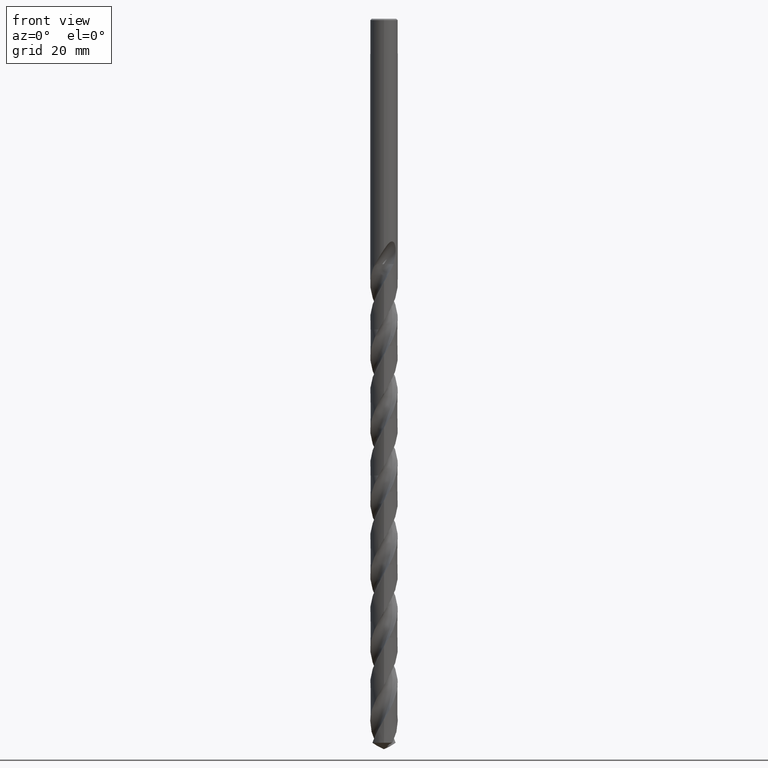
[diagram: clean part render]
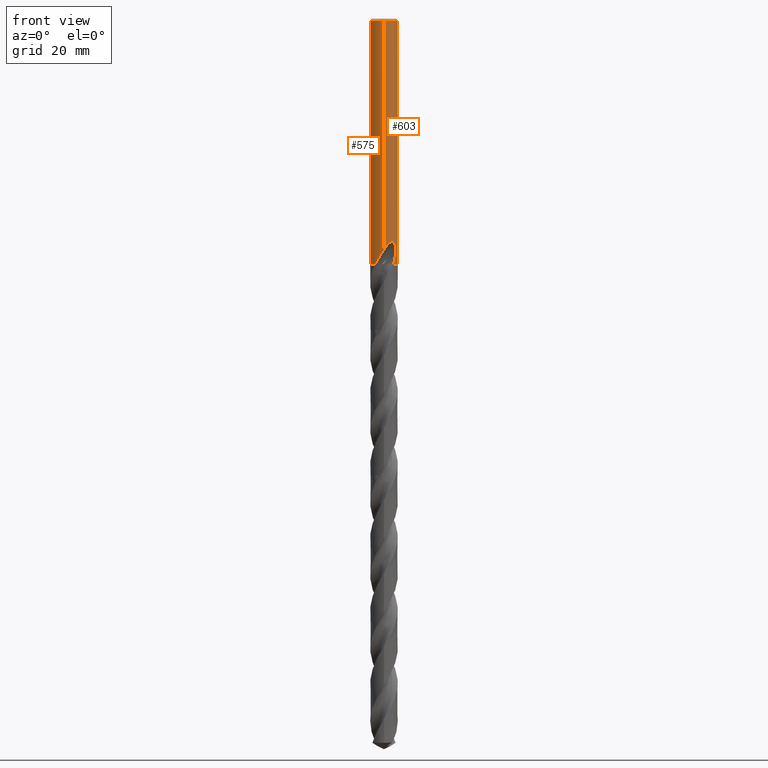
[diagram: same view with one multi-face feature highlighted, each face labeled with its STEP entity id]
A machine part, front view. The highlighted faces form ONE feature: a constant-radius fillet chain: 2 tangent blend faces with common blend radius 5 mm. The faces share edges in the B-rep.
Their STEP definitions:
[1] entity #603 (Cylinder):
#321=VERTEX_POINT('',#894);
#329=VERTEX_POINT('',#904);
#353=EDGE_CURVE('',#379,#321,#931,.T.);
#355=EDGE_CURVE('',#441,#745,#933,.T.);
#379=VERTEX_POINT('',#959);
#397=EDGE_CURVE('',#637,#481,#977,.T.);
#421=EDGE_CURVE('',#537,#683,#1004,.T.);
#441=VERTEX_POINT('',#1024);
#473=EDGE_CURVE('',#683,#681,#1061,.T.);
#481=VERTEX_POINT('',#1070);
#517=EDGE_CURVE('',#379,#329,#1111,.T.);
#525=EDGE_CURVE('',#755,#537,#1120,.T.);
#531=EDGE_CURVE('',#829,#751,#1126,.T.);
#537=VERTEX_POINT('',#1132);
#563=EDGE_CURVE('',#755,#599,#1161,.T.);
#599=VERTEX_POINT('',#1202);
#603=ADVANCED_FACE('',(#1206),#1207,.T.);
#631=EDGE_CURVE('',#321,#745,#1237,.T.);
#637=VERTEX_POINT('',#1244);
#681=VERTEX_POINT('',#1290);
#683=VERTEX_POINT('',#1292);
#721=EDGE_CURVE('',#681,#637,#1334,.T.);
#741=EDGE_CURVE('',#441,#599,#1355,.T.);
#745=VERTEX_POINT('',#1359);
#749=EDGE_CURVE('',#771,#329,#1363,.T.);
#751=VERTEX_POINT('',#1365);
#755=VERTEX_POINT('',#1369);
#771=VERTEX_POINT('',#1386);
#829=VERTEX_POINT('',#1449);
#833=EDGE_CURVE('',#771,#751,#1453,.T.);
#857=EDGE_CURVE('',#481,#829,#1478,.T.);
#894=CARTESIAN_POINT('',(4.06821081647643,-2.90683001785523,-86.2670988560816));
#904=CARTESIAN_POINT('',(6.12303176911189E-016,-5.0,-0.5));
#931=B_SPLINE_CURVE_WITH_KNOTS('',3,(#5216,#5217,#5218,#5219,#5220,#5221,#5222,#5223,#5224,#5225,#5226,#5227,#5228,#5229,#5230,#5231,#5232,#5233,#5234,#5235,#5236,#5237,#5238,#5239,#5240,#5241,#5242,#5243,#5244,#5245),.UNSPECIFIED.,.F.,.F.,(4,2,2,2,2,2,2,2,2,2,2,2,2,2,4),(0.0,2.44607777701198,3.78334796298583,4.99512229908905,6.40323188173331,8.09442266019314,9.55795720809553,10.222023430528,10.7074197722928,11.1667761714211,11.7495414487186,12.6021883385901,13.8142995960593,14.607185367353,15.4404435408894),.UNSPECIFIED.);
#933=CIRCLE('',#5248,5.0);
#959=CARTESIAN_POINT('',(1.55017749396517E-012,-5.0,-83.6901144457998));
#977=LINE('',#6253,#6254);
#1004=ELLIPSE('',#8523,15.2399728668489,5.0);
#1024=CARTESIAN_POINT('',(3.18369989250538,3.85539297536078,-89.0));
#1061=LINE('',#9774,#9775);
#1070=CARTESIAN_POINT('',(1.33721006514658,4.81786978255647,-70.5150484364821));
#1111=LINE('',#10986,#10987);
#1120=B_SPLINE_CURVE_WITH_KNOTS('',3,(#10997,#10998,#10999,#11000,#11001,#11002,#11003,#11004,#11005,#11006,#11007,#11008,#11009,#11010,#11011,#11012),.UNSPECIFIED.,.F.,.F.,(4,2,2,2,2,2,2,4),(5.87517564836088,6.18447732711525,6.49384941721168,6.8032215073081,7.11259359740452,7.42196568750095,7.73087791711932,8.03979014673769),.UNSPECIFIED.);
#1126=B_SPLINE_CURVE_WITH_KNOTS('',3,(#11319,#11320,#11321,#11322,#11323,#11324,#11325,#11326,#11327,#11328,#11329,#11330,#11331,#11332,#11333,#11334,#11335,#11336,#11337,#11338,#11339,#11340,#11341,#11342,#11343,#11344,#11345),.UNSPECIFIED.,.F.,.F.,(4,2,3,2,2,2,2,2,2,2,2,2,4),(-0.542486104801739,-0.27124305240087,0.0,0.271243052400869,0.542486104801738,0.814298814936945,1.08611152507215,1.35696845964794,1.62782539422372,1.89896433698446,2.1701032797452,2.44124222250594,2.71238116526669),.UNSPECIFIED.);
#1132=CARTESIAN_POINT('',(0.29010312703583,4.99157692274536,-72.9998328990228));
#1161=LINE('',#12200,#12201);
#1202=CARTESIAN_POINT('',(-1.54285002200265E-012,5.0,-83.6901144457998));
#1206=FACE_OUTER_BOUND('',#12563,.T.);
#1207=CYLINDRICAL_SURFACE('',#12564,5.0);
#1237=B_SPLINE_CURVE_WITH_KNOTS('',3,(#13275,#13276,#13277,#13278),.UNSPECIFIED.,.F.,.F.,(4,4),(0.0,2.86833819870931),.UNSPECIFIED.);
#1244=CARTESIAN_POINT('',(1.33721006514658,4.81786978255646,-72.2901657003257));
#1290=CARTESIAN_POINT('',(0.873560781758956,4.92309776061503,-72.7587351791531));
#1292=CARTESIAN_POINT('',(0.873560781758957,4.92309776061503,-71.3198931596091));
#1334=B_SPLINE_CURVE_WITH_KNOTS('',3,(#15283,#15284,#15285,#15286,#15287,#15288,#15289,#15290,#15291,#15292),.UNSPECIFIED.,.F.,.F.,(4,2,2,2,4),(8.03978938391208,8.34870158568318,8.65761378745427,8.96684541549287,9.27607704353146),.UNSPECIFIED.);
#1355=B_SPLINE_CURVE_WITH_KNOTS('',3,(#15328,#15329,#15330,#15331,#15332,#15333,#15334,#15335,#15336,#15337,#15338,#15339,#15340,#15341,#15342,#15343,#15344,#15345,#15346,#15347,#15348,#15349,#15350,#15351,#15352,#15353,#15354,#15355,#15356,#15357),.UNSPECIFIED.,.F.,.F.,(4,2,2,2,2,2,2,2,2,2,2,2,2,2,4),(0.0,2.44607777701194,3.78334796298605,4.99512229908972,6.40323188173385,8.09442266019352,9.55795720809567,10.2220234305282,10.7074197722929,11.1667761714212,11.749541448719,12.6021883385911,13.8142995960615,14.6071853673558,15.4404435408929),.UNSPECIFIED.);
#1359=CARTESIAN_POINT('',(3.47670664779819,-3.59339823637123,-89.0));
#1363=CIRCLE('',#15367,5.0);
#1365=CARTESIAN_POINT('',(2.14056334127452E-015,5.0,-71.0232688117743));
#1369=CARTESIAN_POINT('',(9.42147903807027E-016,5.0,-73.0310253601034));
#1386=CARTESIAN_POINT('',(0.0,5.0,-0.5));
#1449=CARTESIAN_POINT('',(0.799431726384364,4.93567714856332,-70.000000276873));
#1453=LINE('',#17325,#17326);
#1478=B_SPLINE_CURVE_WITH_KNOTS('',3,(#18268,#18269,#18270,#18271,#18272,#18273,#18274,#18275,#18276,#18277),.UNSPECIFIED.,.F.,.F.,(4,2,2,2,4),(0.618463277568795,0.927694916353193,1.23692655513759,1.54583876733633,1.85475097953507),.UNSPECIFIED.);
#5216=CARTESIAN_POINT('',(-3.18369989250538,-3.85539297536078,-89.0));
#5217=CARTESIAN_POINT('',(-2.85406590813475,-4.12759756963011,-88.3056968843148));
#5218=CARTESIAN_POINT('',(-2.47525887047331,-4.36946715824586,-87.6581994401735));
#5219=CARTESIAN_POINT('',(-1.81473449441654,-4.66607311629714,-86.5762930464768));
#5220=CARTESIAN_POINT('',(-1.57686620428782,-4.75145827683551,-86.1953275186988));
#5221=CARTESIAN_POINT('',(-1.1163030630957,-4.87908651149652,-85.4577423223255));
#5222=CARTESIAN_POINT('',(-0.895653361450834,-4.92417738777206,-85.1045428379995));
#5223=CARTESIAN_POINT('',(-0.417985525806648,-4.98923060543745,-84.3432331588951));
#5224=CARTESIAN_POINT('',(-0.156964368126677,-5.00447218195467,-83.9291458543625));
#5225=CARTESIAN_POINT('',(0.422657682657537,-4.99213779766469,-83.0434100520718));
#5226=CARTESIAN_POINT('',(0.766342411190756,-4.95433705855272,-82.539418026656));
#5227=CARTESIAN_POINT('',(1.42864581789103,-4.80191385787404,-81.709166705754));
#5228=CARTESIAN_POINT('',(1.79468140245996,-4.6859809428233,-81.3045070518848));
#5229=CARTESIAN_POINT('',(2.34890255312178,-4.41809586196181,-80.9252770367008));
#5230=CARTESIAN_POINT('',(2.53250918029102,-4.31687864249262,-80.8314818217658));
#5231=CARTESIAN_POINT('',(2.85423880386233,-4.10846980481675,-80.7594487715074));
#5232=CARTESIAN_POINT('',(2.98620216087985,-4.0135562161977,-80.7581215463936));
#5233=CARTESIAN_POINT('',(3.23199428234378,-3.81805331987809,-80.8212384599523));
#5234=CARTESIAN_POINT('',(3.3394927989642,-3.72362807381564,-80.8804027809088));
#5235=CARTESIAN_POINT('',(3.55825626598477,-3.51669853819297,-81.0655090520644));
#5236=CARTESIAN_POINT('',(3.65946665641644,-3.40946119129411,-81.2021752140796));
#5237=CARTESIAN_POINT('',(3.86677853414884,-3.17530083334242,-81.5764062278713));
#5238=CARTESIAN_POINT('',(3.96586698818067,-3.04778560674963,-81.8539763364272));
#5239=CARTESIAN_POINT('',(4.15218500147194,-2.79175811013554,-82.6305648106482));
#5240=CARTESIAN_POINT('',(4.21953359046538,-2.68271831952406,-83.1836341781055));
#5241=CARTESIAN_POINT('',(4.25282338551273,-2.62946952381054,-84.2070683204208));
#5242=CARTESIAN_POINT('',(4.24497100799916,-2.64248934565095,-84.6145479284141));
#5243=CARTESIAN_POINT('',(4.18958938193937,-2.72949330322691,-85.4415232720679));
#5244=CARTESIAN_POINT('',(4.14015341260432,-2.80614382501452,-85.8579066419005));
#5245=CARTESIAN_POINT('',(4.06821081647643,-2.90683001785523,-86.2670988560816));
#5248=AXIS2_PLACEMENT_3D('',#18360,#18361,#18362);
#6253=CARTESIAN_POINT('',(1.33721006514658,4.81786978255646,-71.4026070684039));
#6254=VECTOR('',#18392,1.0);
#8523=AXIS2_PLACEMENT_3D('',#18427,#18428,#18429);
#9774=CARTESIAN_POINT('',(0.873560781758957,4.92309776061503,-72.0393141693811));
#9775=VECTOR('',#18482,1.0);
#10986=CARTESIAN_POINT('',(6.12303176911189E-016,-5.0,-82.0));
#10987=VECTOR('',#18535,1.0);
#10997=CARTESIAN_POINT('',(-1.3791962593314,4.80601890115366,-72.3124404256203));
#10998=CARTESIAN_POINT('',(-1.31957521374487,4.82312851403775,-72.4009601597598));
#10999=CARTESIAN_POINT('',(-1.25205684175205,4.84126211135571,-72.4821654513649));
#11000=CARTESIAN_POINT('',(-1.10836495207318,4.87616599259845,-72.6259115514073));
#11001=CARTESIAN_POINT('',(-1.0271524301646,4.89418890879516,-72.693486795378));
#11002=CARTESIAN_POINT('',(-0.850055905397224,4.92803532326639,-72.8128453591325));
#11003=CARTESIAN_POINT('',(-0.754172188044363,4.94382885968066,-72.8646375967458));
#11004=CARTESIAN_POINT('',(-0.553725999780853,4.97027232652294,-72.9480281920328));
#11005=CARTESIAN_POINT('',(-0.448990720596506,4.98092390938096,-72.9796924022892));
#11006=CARTESIAN_POINT('',(-0.237871423561602,4.99545922254228,-73.0213202804398));
#11007=CARTESIAN_POINT('',(-0.13148454027928,4.99933459384723,-73.0312723335086));
#11008=CARTESIAN_POINT('',(0.0746069172274584,5.00050365281921,-73.0312723335086));
#11009=CARTESIAN_POINT('',(0.180879006433095,4.99784409598263,-73.021349312763));
#11010=CARTESIAN_POINT('',(0.391840688075157,4.98574204084828,-72.9798000876985));
#11011=CARTESIAN_POINT('',(0.496532945230272,4.97630796240248,-72.9481849619546));
#11012=CARTESIAN_POINT('',(0.596736821506947,4.96426280185264,-72.9065357940623));
#11319=CARTESIAN_POINT('',(0.665122770091171,4.95556371169883,-69.8135963457478));
#11320=CARTESIAN_POINT('',(0.728735196954595,4.94702581852882,-69.8772777273236));
#11321=CARTESIAN_POINT('',(0.783964166103467,4.93829748078097,-69.9579436035979));
#11322=CARTESIAN_POINT('',(0.857301933462899,4.92609533329604,-70.1349114173306));
#11323=CARTESIAN_POINT('',(0.875400981188567,4.92277087849253,-70.2312276617865));
#11324=CARTESIAN_POINT('',(0.875400981188567,4.92277087849253,-70.3216420125868));
#11325=CARTESIAN_POINT('',(0.875400981188567,4.92277087849253,-70.4120563633871));
#11326=CARTESIAN_POINT('',(0.857301933462899,4.92609533329604,-70.5083726078429));
#11327=CARTESIAN_POINT('',(0.783964166103467,4.93829748078097,-70.6853404215757));
#11328=CARTESIAN_POINT('',(0.728735196954595,4.94702581852882,-70.76600629785));
#11329=CARTESIAN_POINT('',(0.601376746032752,4.96411953593411,-70.8935028030135));
#11330=CARTESIAN_POINT('',(0.520641197115554,4.97361399538109,-70.9488552844728));
#11331=CARTESIAN_POINT('',(0.343503822480858,4.98897870858442,-71.0223670116056));
#11332=CARTESIAN_POINT('',(0.247086219827462,4.9947129574863,-71.0405166027747));
#11333=CARTESIAN_POINT('',(0.066284997875468,5.00037576555244,-71.0405166027747));
#11334=CARTESIAN_POINT('',(-0.0299853354073712,5.00069421157822,-71.022481035651));
#11335=CARTESIAN_POINT('',(-0.207042529230848,4.99649628332508,-70.9491606175219));
#11336=CARTESIAN_POINT('',(-0.287834149954028,4.99211780487336,-70.8938794313977));
#11337=CARTESIAN_POINT('',(-0.415469449620834,4.98311973872716,-70.7663325263823));
#11338=CARTESIAN_POINT('',(-0.470822894462517,4.97792007270922,-70.6855206130663));
#11339=CARTESIAN_POINT('',(-0.544264412763404,4.97042641093864,-70.5083690868499));
#11340=CARTESIAN_POINT('',(-0.562348199187247,4.96827580785033,-70.4120216601737));
#11341=CARTESIAN_POINT('',(-0.562348199187247,4.96827580785033,-70.2312623649999));
#11342=CARTESIAN_POINT('',(-0.544264412763404,4.97042641093864,-70.1349149383237));
#11343=CARTESIAN_POINT('',(-0.470822894462518,4.97792007270922,-69.9577634121072));
#11344=CARTESIAN_POINT('',(-0.415469449620837,4.98311973872716,-69.8769514987912));
#11345=CARTESIAN_POINT('',(-0.351618594554049,4.98762111271133,-69.8131448640466));
#12200=CARTESIAN_POINT('',(-6.12303176911189E-016,5.0,-82.0));
#12201=VECTOR('',#18582,1.0);
#12563=EDGE_LOOP('',(#18658,#18659,#18660,#18661,#18662,#18663,#18664,#18665,#18666,#18667,#18668,#18669,#18670,#18671,#18672));
#12564=AXIS2_PLACEMENT_3D('',#18673,#18674,#18675);
#13275=CARTESIAN_POINT('',(4.06821081652905,-2.90683001778158,-86.2670988561105));
#13276=CARTESIAN_POINT('',(3.90731007304645,-3.13201626569403,-87.1822784354923));
#13277=CARTESIAN_POINT('',(3.71344614018777,-3.36434659420802,-88.1028700889231));
#13278=CARTESIAN_POINT('',(3.47670664779819,-3.59339823637123,-89.0));
#15283=CARTESIAN_POINT('',(0.596736548110756,4.96426283471664,-72.9065353597382));
#15284=CARTESIAN_POINT('',(0.696940415976902,4.95221768077605,-72.8648861955132));
#15285=CARTESIAN_POINT('',(0.79282967838602,4.93756175251447,-72.8131364650754));
#15286=CARTESIAN_POINT('',(0.969955792779437,4.90584148938556,-72.6938507691423));
#15287=CARTESIAN_POINT('',(1.05119214028325,4.88880718483703,-72.6263060709848));
#15288=CARTESIAN_POINT('',(1.1950179267128,4.85565484960812,-72.4825325659411));
#15289=CARTESIAN_POINT('',(1.26262396516471,4.83834796167932,-72.4012621113954));
#15290=CARTESIAN_POINT('',(1.38199541925443,4.80561327380657,-72.2240986142183));
#15291=CARTESIAN_POINT('',(1.4337709692914,4.79021953794996,-72.1282061077952));
#15292=CARTESIAN_POINT('',(1.47544633659597,4.77734843902196,-72.027992982926));
#15328=CARTESIAN_POINT('',(3.18369989250538,3.85539297536078,-89.0));
#15329=CARTESIAN_POINT('',(2.85406590813475,4.1275975696301,-88.3056968843148));
#15330=CARTESIAN_POINT('',(2.47525887047333,4.36946715824585,-87.6581994401735));
#15331=CARTESIAN_POINT('',(1.81473449441649,4.66607311629717,-86.5762930464767));
#15332=CARTESIAN_POINT('',(1.5768662042877,4.75145827683554,-86.1953275186985));
#15333=CARTESIAN_POINT('',(1.11630306309578,4.87908651149649,-85.4577423223256));
#15334=CARTESIAN_POINT('',(0.895653361450996,4.92417738777204,-85.1045428379997));
#15335=CARTESIAN_POINT('',(0.417985525806598,4.98923060543746,-84.343233158895));
#15336=CARTESIAN_POINT('',(0.156964368126655,5.00447218195467,-83.9291458543625));
#15337=CARTESIAN_POINT('',(-0.422657682657497,4.99213779766469,-83.0434100520718));
#15338=CARTESIAN_POINT('',(-0.766342411190737,4.95433705855273,-82.539418026656));
#15339=CARTESIAN_POINT('',(-1.42864581789101,4.80191385787405,-81.709166705754));
#15340=CARTESIAN_POINT('',(-1.79468140245995,4.6859809428233,-81.3045070518848));
#15341=CARTESIAN_POINT('',(-2.34890255312184,4.41809586196178,-80.9252770367008));
#15342=CARTESIAN_POINT('',(-2.53250918029104,4.3168786424926,-80.8314818217658));
#15343=CARTESIAN_POINT('',(-2.85423880386227,4.10846980481679,-80.7594487715074));
#15344=CARTESIAN_POINT('',(-2.98620216087983,4.01355621619772,-80.7581215463936));
#15345=CARTESIAN_POINT('',(-3.23199428234381,3.81805331987807,-80.8212384599523));
#15346=CARTESIAN_POINT('',(-3.33949279896426,3.72362807381559,-80.8804027809088));
#15347=CARTESIAN_POINT('',(-3.55825626598478,3.51669853819296,-81.0655090520644));
#15348=CARTESIAN_POINT('',(-3.65946665641644,3.4094611912941,-81.2021752140796));
#15349=CARTESIAN_POINT('',(-3.86677853414888,3.17530083334237,-81.5764062278714));
#15350=CARTESIAN_POINT('',(-3.96586698818069,3.0477856067496,-81.8539763364273));
#15351=CARTESIAN_POINT('',(-4.15218500147193,2.79175811013557,-82.6305648106481));
#15352=CARTESIAN_POINT('',(-4.21953359046538,2.68271831952406,-83.1836341781054));
#15353=CARTESIAN_POINT('',(-4.25282338551273,2.62946952381053,-84.2070683204208));
#15354=CARTESIAN_POINT('',(-4.24497100799917,2.64248934565095,-84.6145479284141));
#15355=CARTESIAN_POINT('',(-4.18958938193937,2.7294933032269,-85.4415232720678));
#15356=CARTESIAN_POINT('',(-4.14015341260433,2.80614382501451,-85.8579066419005));
#15357=CARTESIAN_POINT('',(-4.06821081647643,2.90683001785522,-86.2670988560816));
#15367=AXIS2_PLACEMENT_3D('',#18845,#18846,#18847);
#17325=CARTESIAN_POINT('',(-6.12303176911189E-016,5.0,-82.0));
#17326=VECTOR('',#18916,1.0);
#18268=CARTESIAN_POINT('',(1.47544634459504,4.77734843655151,-70.7772211678144));
#18269=CARTESIAN_POINT('',(1.43377097583397,4.79021953600577,-70.6770080394811));
#18270=CARTESIAN_POINT('',(1.38199542398866,4.80561327247309,-70.5811155297459));
#18271=CARTESIAN_POINT('',(1.26262396572433,4.83834796156109,-70.4039520264488));
#18272=CARTESIAN_POINT('',(1.19501792490561,4.8556548500921,-70.3226815690952));
#18273=CARTESIAN_POINT('',(1.05119213349515,4.88880718633437,-70.1789080591531));
#18274=CARTESIAN_POINT('',(0.969955783216377,4.90584149133193,-70.1113633587199));
#18275=CARTESIAN_POINT('',(0.792829662772189,4.93756175507685,-69.9920776587655));
#18276=CARTESIAN_POINT('',(0.696940397087143,4.95221768350352,-69.9403279265819));
#18277=CARTESIAN_POINT('',(0.596736525802596,4.96426283739822,-69.8986787609541));
#18360=CARTESIAN_POINT('',(0.0,0.0,-89.0));
#18361=DIRECTION('',(0.0,0.0,-1.0));
#18362=DIRECTION('',(0.0,1.0,0.0));
#18392=DIRECTION('',(-0.0,-0.0,1.0));
#18427=CARTESIAN_POINT('',(0.0,0.0,-73.8351219173269));
#18428=DIRECTION('',(0.944648353914092,0.0,-0.328084573619969));
#18429=DIRECTION('',(0.328084573619969,-0.0,0.944648353914092));
#18482=DIRECTION('',(0.0,0.0,-1.0));
#18535=DIRECTION('',(-0.0,-0.0,1.0));
#18582=DIRECTION('',(0.0,0.0,-1.0));
#18658=ORIENTED_EDGE('',*,*,#833,.F.);
#18659=ORIENTED_EDGE('',*,*,#749,.T.);
#18660=ORIENTED_EDGE('',*,*,#517,.F.);
#18661=ORIENTED_EDGE('',*,*,#353,.T.);
#18662=ORIENTED_EDGE('',*,*,#631,.T.);
#18663=ORIENTED_EDGE('',*,*,#355,.F.);
#18664=ORIENTED_EDGE('',*,*,#741,.T.);
#18665=ORIENTED_EDGE('',*,*,#563,.F.);
#18666=ORIENTED_EDGE('',*,*,#525,.T.);
#18667=ORIENTED_EDGE('',*,*,#421,.T.);
#18668=ORIENTED_EDGE('',*,*,#473,.T.);
#18669=ORIENTED_EDGE('',*,*,#721,.T.);
#18670=ORIENTED_EDGE('',*,*,#397,.T.);
#18671=ORIENTED_EDGE('',*,*,#857,.T.);
#18672=ORIENTED_EDGE('',*,*,#531,.T.);
#18673=CARTESIAN_POINT('',(0.0,0.0,-82.0));
#18674=DIRECTION('',(-0.0,-0.0,1.0));
#18675=DIRECTION('',(0.0,1.0,0.0));
#18845=CARTESIAN_POINT('',(0.0,0.0,-0.5));
#18846=DIRECTION('',(0.0,0.0,-1.0));
#18847=DIRECTION('',(0.0,1.0,0.0));
#18916=DIRECTION('',(0.0,0.0,-1.0));
[2] entity #575 (Cylinder):
#329=VERTEX_POINT('',#904);
#341=VERTEX_POINT('',#919);
#345=EDGE_CURVE('',#783,#755,#923,.T.);
#351=VERTEX_POINT('',#929);
#363=EDGE_CURVE('',#341,#449,#942,.T.);
#379=VERTEX_POINT('',#959);
#449=VERTEX_POINT('',#1032);
#467=VERTEX_POINT('',#1054);
#471=EDGE_CURVE('',#649,#341,#1059,.T.);
#485=VERTEX_POINT('',#1074);
#517=EDGE_CURVE('',#379,#329,#1111,.T.);
#563=EDGE_CURVE('',#755,#599,#1161,.T.);
#575=ADVANCED_FACE('',(#1174),#1175,.T.);
#581=EDGE_CURVE('',#329,#771,#1182,.T.);
#599=VERTEX_POINT('',#1202);
#623=EDGE_CURVE('',#351,#379,#1229,.T.);
#627=EDGE_CURVE('',#599,#467,#1233,.T.);
#645=EDGE_CURVE('',#751,#649,#1252,.T.);
#649=VERTEX_POINT('',#1256);
#709=EDGE_CURVE('',#449,#485,#1320,.T.);
#731=EDGE_CURVE('',#351,#743,#1344,.T.);
#743=VERTEX_POINT('',#1357);
#747=EDGE_CURVE('',#753,#783,#1361,.T.);
#751=VERTEX_POINT('',#1365);
#753=VERTEX_POINT('',#1367);
#755=VERTEX_POINT('',#1369);
#757=EDGE_CURVE('',#485,#753,#1371,.T.);
#771=VERTEX_POINT('',#1386);
#783=VERTEX_POINT('',#1399);
#833=EDGE_CURVE('',#771,#751,#1453,.T.);
#845=EDGE_CURVE('',#467,#743,#1465,.T.);
#904=CARTESIAN_POINT('',(6.12303176911189E-016,-5.0,-0.5));
#919=CARTESIAN_POINT('',(-0.562333990228013,4.96827741611056,-70.3171221986971));
#923=B_SPLINE_CURVE_WITH_KNOTS('',3,(#4885,#4886,#4887,#4888,#4889,#4890,#4891,#4892,#4893,#4894,#4895,#4896,#4897,#4898,#4899,#4900),.UNSPECIFIED.,.F.,.F.,(4,2,2,2,2,2,2,4),(5.87517564836088,6.18447732711525,6.49384941721168,6.8032215073081,7.11259359740452,7.42196568750095,7.73087791711932,8.03979014673769),.UNSPECIFIED.);
#929=CARTESIAN_POINT('',(-3.18369989250538,-3.85539297536078,-89.0));
#942=CIRCLE('',#5566,5.0);
#959=CARTESIAN_POINT('',(1.55017749396517E-012,-5.0,-83.6901144457998));
#1032=CARTESIAN_POINT('',(-1.0350734039088,4.89168918151191,-70.3171221986971));
#1054=CARTESIAN_POINT('',(-4.06821081647643,2.90683001785522,-86.2670988560816));
#1059=B_SPLINE_CURVE_WITH_KNOTS('',3,(#9745,#9746,#9747,#9748,#9749,#9750,#9751,#9752,#9753,#9754,#9755,#9756,#9757,#9758,#9759,#9760,#9761,#9762,#9763,#9764,#9765,#9766,#9767,#9768,#9769,#9770,#9771),.UNSPECIFIED.,.F.,.F.,(4,2,3,2,2,2,2,2,2,2,2,2,4),(-0.542486104801739,-0.27124305240087,0.0,0.271243052400869,0.542486104801738,0.814298814936945,1.08611152507215,1.35696845964794,1.62782539422372,1.89896433698446,2.1701032797452,2.44124222250594,2.71238116526669),.UNSPECIFIED.);
#1074=CARTESIAN_POINT('',(-1.47324480286847E-016,5.0,-71.5000801551881));
#1111=LINE('',#10986,#10987);
#1161=LINE('',#12200,#12201);
#1174=FACE_OUTER_BOUND('',#12218,.T.);
#1175=CYLINDRICAL_SURFACE('',#12219,5.0);
#1182=CIRCLE('',#12228,5.0);
#1202=CARTESIAN_POINT('',(-1.54285002200265E-012,5.0,-83.6901144457998));
#1229=B_SPLINE_CURVE_WITH_KNOTS('',3,(#13207,#13208,#13209,#13210,#13211,#13212,#13213,#13214,#13215,#13216,#13217,#13218,#13219,#13220,#13221,#13222,#13223,#13224,#13225,#13226,#13227,#13228,#13229,#13230,#13231,#13232,#13233,#13234,#13235,#13236),.UNSPECIFIED.,.F.,.F.,(4,2,2,2,2,2,2,2,2,2,2,2,2,2,4),(0.0,2.44607777701198,3.78334796298583,4.99512229908905,6.40323188173331,8.09442266019314,9.55795720809553,10.222023430528,10.7074197722928,11.1667761714211,11.7495414487186,12.6021883385901,13.8142995960593,14.607185367353,15.4404435408894),.UNSPECIFIED.);
#1233=B_SPLINE_CURVE_WITH_KNOTS('',3,(#13241,#13242,#13243,#13244,#13245,#13246,#13247,#13248,#13249,#13250,#13251,#13252,#13253,#13254,#13255,#13256,#13257,#13258,#13259,#13260,#13261,#13262,#13263,#13264,#13265,#13266,#13267,#13268,#13269,#13270),.UNSPECIFIED.,.F.,.F.,(4,2,2,2,2,2,2,2,2,2,2,2,2,2,4),(0.0,2.44607777701194,3.78334796298605,4.99512229908972,6.40323188173385,8.09442266019352,9.55795720809567,10.2220234305282,10.7074197722929,11.1667761714212,11.749541448719,12.6021883385911,13.8142995960615,14.6071853673558,15.4404435408929),.UNSPECIFIED.);
#1252=B_SPLINE_CURVE_WITH_KNOTS('',3,(#13897,#13898,#13899,#13900,#13901,#13902,#13903,#13904,#13905,#13906,#13907,#13908,#13909,#13910,#13911,#13912,#13913,#13914,#13915,#13916,#13917,#13918,#13919,#13920,#13921,#13922,#13923),.UNSPECIFIED.,.F.,.F.,(4,2,3,2,2,2,2,2,2,2,2,2,4),(-0.542486104801739,-0.27124305240087,0.0,0.271243052400869,0.542486104801738,0.814298814936945,1.08611152507215,1.35696845964794,1.62782539422372,1.89896433698446,2.1701032797452,2.44124222250594,2.71238116526669),.UNSPECIFIED.);
#1256=CARTESIAN_POINT('',(-0.486378944383046,4.9762873231417,-70.6432837483006));
#1320=B_SPLINE_CURVE_WITH_KNOTS('',3,(#15251,#15252,#15253,#15254,#15255,#15256,#15257,#15258,#15259,#15260,#15261,#15262,#15263,#15264),.UNSPECIFIED.,.F.,.F.,(4,2,2,2,2,2,4),(3.1333306003147,3.58067338374497,4.02801616717523,4.47535895060548,4.92178692976237,5.36821490891926,5.8171252176847),.UNSPECIFIED.);
#1344=CIRCLE('',#15306,5.0);
#1357=CARTESIAN_POINT('',(-3.4767066477982,3.59339823637122,-89.0));
#1361=ELLIPSE('',#15364,5.5746421602143,5.0);
#1365=CARTESIAN_POINT('',(2.14056334127452E-015,5.0,-71.0232688117743));
#1367=CARTESIAN_POINT('',(-1.32680976165839E-015,5.0,-71.7128911336578));
#1369=CARTESIAN_POINT('',(9.42147903807027E-016,5.0,-73.0310253601034));
#1371=LINE('',#15376,#15377);
#1386=CARTESIAN_POINT('',(0.0,5.0,-0.5));
#1399=CARTESIAN_POINT('',(-1.337052752443,4.81791344226778,-72.3720803908795));
#1453=LINE('',#17325,#17326);
#1465=B_SPLINE_CURVE_WITH_KNOTS('',3,(#17639,#17640,#17641,#17642),.UNSPECIFIED.,.F.,.F.,(4,4),(0.0,2.86833819870861),.UNSPECIFIED.);
#4885=CARTESIAN_POINT('',(-1.3791962593314,4.80601890115366,-72.3124404256203));
#4886=CARTESIAN_POINT('',(-1.31957521374487,4.82312851403775,-72.4009601597598));
#4887=CARTESIAN_POINT('',(-1.25205684175205,4.84126211135571,-72.4821654513649));
#4888=CARTESIAN_POINT('',(-1.10836495207318,4.87616599259845,-72.6259115514073));
#4889=CARTESIAN_POINT('',(-1.0271524301646,4.89418890879516,-72.693486795378));
#4890=CARTESIAN_POINT('',(-0.850055905397224,4.92803532326639,-72.8128453591325));
#4891=CARTESIAN_POINT('',(-0.754172188044363,4.94382885968066,-72.8646375967458));
#4892=CARTESIAN_POINT('',(-0.553725999780853,4.97027232652294,-72.9480281920328));
#4893=CARTESIAN_POINT('',(-0.448990720596506,4.98092390938096,-72.9796924022892));
#4894=CARTESIAN_POINT('',(-0.237871423561602,4.99545922254228,-73.0213202804398));
#4895=CARTESIAN_POINT('',(-0.13148454027928,4.99933459384723,-73.0312723335086));
#4896=CARTESIAN_POINT('',(0.0746069172274584,5.00050365281921,-73.0312723335086));
#4897=CARTESIAN_POINT('',(0.180879006433095,4.99784409598263,-73.021349312763));
#4898=CARTESIAN_POINT('',(0.391840688075157,4.98574204084828,-72.9798000876985));
#4899=CARTESIAN_POINT('',(0.496532945230272,4.97630796240248,-72.9481849619546));
#4900=CARTESIAN_POINT('',(0.596736821506947,4.96426280185264,-72.9065357940623));
#5566=AXIS2_PLACEMENT_3D('',#18372,#18373,#18374);
#9745=CARTESIAN_POINT('',(0.665122770091171,4.95556371169883,-69.8135963457478));
#9746=CARTESIAN_POINT('',(0.728735196954595,4.94702581852882,-69.8772777273236));
#9747=CARTESIAN_POINT('',(0.783964166103467,4.93829748078097,-69.9579436035979));
#9748=CARTESIAN_POINT('',(0.857301933462899,4.92609533329604,-70.1349114173306));
#9749=CARTESIAN_POINT('',(0.875400981188567,4.92277087849253,-70.2312276617865));
#9750=CARTESIAN_POINT('',(0.875400981188567,4.92277087849253,-70.3216420125868));
#9751=CARTESIAN_POINT('',(0.875400981188567,4.92277087849253,-70.4120563633871));
#9752=CARTESIAN_POINT('',(0.857301933462899,4.92609533329604,-70.5083726078429));
#9753=CARTESIAN_POINT('',(0.783964166103467,4.93829748078097,-70.6853404215757));
#9754=CARTESIAN_POINT('',(0.728735196954595,4.94702581852882,-70.76600629785));
#9755=CARTESIAN_POINT('',(0.601376746032752,4.96411953593411,-70.8935028030135));
#9756=CARTESIAN_POINT('',(0.520641197115554,4.97361399538109,-70.9488552844728));
#9757=CARTESIAN_POINT('',(0.343503822480858,4.98897870858442,-71.0223670116056));
#9758=CARTESIAN_POINT('',(0.247086219827462,4.9947129574863,-71.0405166027747));
#9759=CARTESIAN_POINT('',(0.066284997875468,5.00037576555244,-71.0405166027747));
#9760=CARTESIAN_POINT('',(-0.0299853354073712,5.00069421157822,-71.022481035651));
#9761=CARTESIAN_POINT('',(-0.207042529230848,4.99649628332508,-70.9491606175219));
#9762=CARTESIAN_POINT('',(-0.287834149954028,4.99211780487336,-70.8938794313977));
#9763=CARTESIAN_POINT('',(-0.415469449620834,4.98311973872716,-70.7663325263823));
#9764=CARTESIAN_POINT('',(-0.470822894462517,4.97792007270922,-70.6855206130663));
#9765=CARTESIAN_POINT('',(-0.544264412763404,4.97042641093864,-70.5083690868499));
#9766=CARTESIAN_POINT('',(-0.562348199187247,4.96827580785033,-70.4120216601737));
#9767=CARTESIAN_POINT('',(-0.562348199187247,4.96827580785033,-70.2312623649999));
#9768=CARTESIAN_POINT('',(-0.544264412763404,4.97042641093864,-70.1349149383237));
#9769=CARTESIAN_POINT('',(-0.470822894462518,4.97792007270922,-69.9577634121072));
#9770=CARTESIAN_POINT('',(-0.415469449620837,4.98311973872716,-69.8769514987912));
#9771=CARTESIAN_POINT('',(-0.351618594554049,4.98762111271133,-69.8131448640466));
#10986=CARTESIAN_POINT('',(6.12303176911189E-016,-5.0,-82.0));
#10987=VECTOR('',#18535,1.0);
#12200=CARTESIAN_POINT('',(-6.12303176911189E-016,5.0,-82.0));
#12201=VECTOR('',#18582,1.0);
#12218=EDGE_LOOP('',(#18594,#18595,#18596,#18597,#18598,#18599,#18600,#18601,#18602,#18603,#18604,#18605,#18606,#18607,#18608));
#12219=AXIS2_PLACEMENT_3D('',#18609,#18610,#18611);
#12228=AXIS2_PLACEMENT_3D('',#18635,#18636,#18637);
#13207=CARTESIAN_POINT('',(-3.18369989250538,-3.85539297536078,-89.0));
#13208=CARTESIAN_POINT('',(-2.85406590813475,-4.12759756963011,-88.3056968843148));
#13209=CARTESIAN_POINT('',(-2.47525887047331,-4.36946715824586,-87.6581994401735));
#13210=CARTESIAN_POINT('',(-1.81473449441654,-4.66607311629714,-86.5762930464768));
#13211=CARTESIAN_POINT('',(-1.57686620428782,-4.75145827683551,-86.1953275186988));
#13212=CARTESIAN_POINT('',(-1.1163030630957,-4.87908651149652,-85.4577423223255));
#13213=CARTESIAN_POINT('',(-0.895653361450834,-4.92417738777206,-85.1045428379995));
#13214=CARTESIAN_POINT('',(-0.417985525806648,-4.98923060543745,-84.3432331588951));
#13215=CARTESIAN_POINT('',(-0.156964368126677,-5.00447218195467,-83.9291458543625));
#13216=CARTESIAN_POINT('',(0.422657682657537,-4.99213779766469,-83.0434100520718));
#13217=CARTESIAN_POINT('',(0.766342411190756,-4.95433705855272,-82.539418026656));
#13218=CARTESIAN_POINT('',(1.42864581789103,-4.80191385787404,-81.709166705754));
#13219=CARTESIAN_POINT('',(1.79468140245996,-4.6859809428233,-81.3045070518848));
#13220=CARTESIAN_POINT('',(2.34890255312178,-4.41809586196181,-80.9252770367008));
#13221=CARTESIAN_POINT('',(2.53250918029102,-4.31687864249262,-80.8314818217658));
#13222=CARTESIAN_POINT('',(2.85423880386233,-4.10846980481675,-80.7594487715074));
#13223=CARTESIAN_POINT('',(2.98620216087985,-4.0135562161977,-80.7581215463936));
#13224=CARTESIAN_POINT('',(3.23199428234378,-3.81805331987809,-80.8212384599523));
#13225=CARTESIAN_POINT('',(3.3394927989642,-3.72362807381564,-80.8804027809088));
#13226=CARTESIAN_POINT('',(3.55825626598477,-3.51669853819297,-81.0655090520644));
#13227=CARTESIAN_POINT('',(3.65946665641644,-3.40946119129411,-81.2021752140796));
#13228=CARTESIAN_POINT('',(3.86677853414884,-3.17530083334242,-81.5764062278713));
#13229=CARTESIAN_POINT('',(3.96586698818067,-3.04778560674963,-81.8539763364272));
#13230=CARTESIAN_POINT('',(4.15218500147194,-2.79175811013554,-82.6305648106482));
#13231=CARTESIAN_POINT('',(4.21953359046538,-2.68271831952406,-83.1836341781055));
#13232=CARTESIAN_POINT('',(4.25282338551273,-2.62946952381054,-84.2070683204208));
#13233=CARTESIAN_POINT('',(4.24497100799916,-2.64248934565095,-84.6145479284141));
#13234=CARTESIAN_POINT('',(4.18958938193937,-2.72949330322691,-85.4415232720679));
#13235=CARTESIAN_POINT('',(4.14015341260432,-2.80614382501452,-85.8579066419005));
#13236=CARTESIAN_POINT('',(4.06821081647643,-2.90683001785523,-86.2670988560816));
#13241=CARTESIAN_POINT('',(3.18369989250538,3.85539297536078,-89.0));
#13242=CARTESIAN_POINT('',(2.85406590813475,4.1275975696301,-88.3056968843148));
#13243=CARTESIAN_POINT('',(2.47525887047333,4.36946715824585,-87.6581994401735));
#13244=CARTESIAN_POINT('',(1.81473449441649,4.66607311629717,-86.5762930464767));
#13245=CARTESIAN_POINT('',(1.5768662042877,4.75145827683554,-86.1953275186985));
#13246=CARTESIAN_POINT('',(1.11630306309578,4.87908651149649,-85.4577423223256));
#13247=CARTESIAN_POINT('',(0.895653361450996,4.92417738777204,-85.1045428379997));
#13248=CARTESIAN_POINT('',(0.417985525806598,4.98923060543746,-84.343233158895));
#13249=CARTESIAN_POINT('',(0.156964368126655,5.00447218195467,-83.9291458543625));
#13250=CARTESIAN_POINT('',(-0.422657682657497,4.99213779766469,-83.0434100520718));
#13251=CARTESIAN_POINT('',(-0.766342411190737,4.95433705855273,-82.539418026656));
#13252=CARTESIAN_POINT('',(-1.42864581789101,4.80191385787405,-81.709166705754));
#13253=CARTESIAN_POINT('',(-1.79468140245995,4.6859809428233,-81.3045070518848));
#13254=CARTESIAN_POINT('',(-2.34890255312184,4.41809586196178,-80.9252770367008));
#13255=CARTESIAN_POINT('',(-2.53250918029104,4.3168786424926,-80.8314818217658));
#13256=CARTESIAN_POINT('',(-2.85423880386227,4.10846980481679,-80.7594487715074));
#13257=CARTESIAN_POINT('',(-2.98620216087983,4.01355621619772,-80.7581215463936));
#13258=CARTESIAN_POINT('',(-3.23199428234381,3.81805331987807,-80.8212384599523));
#13259=CARTESIAN_POINT('',(-3.33949279896426,3.72362807381559,-80.8804027809088));
#13260=CARTESIAN_POINT('',(-3.55825626598478,3.51669853819296,-81.0655090520644));
#13261=CARTESIAN_POINT('',(-3.65946665641644,3.4094611912941,-81.2021752140796));
#13262=CARTESIAN_POINT('',(-3.86677853414888,3.17530083334237,-81.5764062278714));
#13263=CARTESIAN_POINT('',(-3.96586698818069,3.0477856067496,-81.8539763364273));
#13264=CARTESIAN_POINT('',(-4.15218500147193,2.79175811013557,-82.6305648106481));
#13265=CARTESIAN_POINT('',(-4.21953359046538,2.68271831952406,-83.1836341781054));
#13266=CARTESIAN_POINT('',(-4.25282338551273,2.62946952381053,-84.2070683204208));
#13267=CARTESIAN_POINT('',(-4.24497100799917,2.64248934565095,-84.6145479284141));
#13268=CARTESIAN_POINT('',(-4.18958938193937,2.7294933032269,-85.4415232720678));
#13269=CARTESIAN_POINT('',(-4.14015341260433,2.80614382501451,-85.8579066419005));
#13270=CARTESIAN_POINT('',(-4.06821081647643,2.90683001785522,-86.2670988560816));
#13897=CARTESIAN_POINT('',(0.665122770091171,4.95556371169883,-69.8135963457478));
#13898=CARTESIAN_POINT('',(0.728735196954595,4.94702581852882,-69.8772777273236));
#13899=CARTESIAN_POINT('',(0.783964166103467,4.93829748078097,-69.9579436035979));
#13900=CARTESIAN_POINT('',(0.857301933462899,4.92609533329604,-70.1349114173306));
#13901=CARTESIAN_POINT('',(0.875400981188567,4.92277087849253,-70.2312276617865));
#13902=CARTESIAN_POINT('',(0.875400981188567,4.92277087849253,-70.3216420125868));
#13903=CARTESIAN_POINT('',(0.875400981188567,4.92277087849253,-70.4120563633871));
#13904=CARTESIAN_POINT('',(0.857301933462899,4.92609533329604,-70.5083726078429));
#13905=CARTESIAN_POINT('',(0.783964166103467,4.93829748078097,-70.6853404215757));
#13906=CARTESIAN_POINT('',(0.728735196954595,4.94702581852882,-70.76600629785));
#13907=CARTESIAN_POINT('',(0.601376746032752,4.96411953593411,-70.8935028030135));
#13908=CARTESIAN_POINT('',(0.520641197115554,4.97361399538109,-70.9488552844728));
#13909=CARTESIAN_POINT('',(0.343503822480858,4.98897870858442,-71.0223670116056));
#13910=CARTESIAN_POINT('',(0.247086219827462,4.9947129574863,-71.0405166027747));
#13911=CARTESIAN_POINT('',(0.066284997875468,5.00037576555244,-71.0405166027747));
#13912=CARTESIAN_POINT('',(-0.0299853354073712,5.00069421157822,-71.022481035651));
#13913=CARTESIAN_POINT('',(-0.207042529230848,4.99649628332508,-70.9491606175219));
#13914=CARTESIAN_POINT('',(-0.287834149954028,4.99211780487336,-70.8938794313977));
#13915=CARTESIAN_POINT('',(-0.415469449620834,4.98311973872716,-70.7663325263823));
#13916=CARTESIAN_POINT('',(-0.470822894462517,4.97792007270922,-70.6855206130663));
#13917=CARTESIAN_POINT('',(-0.544264412763404,4.97042641093864,-70.5083690868499));
#13918=CARTESIAN_POINT('',(-0.562348199187247,4.96827580785033,-70.4120216601737));
#13919=CARTESIAN_POINT('',(-0.562348199187247,4.96827580785033,-70.2312623649999));
#13920=CARTESIAN_POINT('',(-0.544264412763404,4.97042641093864,-70.1349149383237));
#13921=CARTESIAN_POINT('',(-0.470822894462518,4.97792007270922,-69.9577634121072));
#13922=CARTESIAN_POINT('',(-0.415469449620837,4.98311973872716,-69.8769514987912));
#13923=CARTESIAN_POINT('',(-0.351618594554049,4.98762111271133,-69.8131448640466));
#15251=CARTESIAN_POINT('',(-0.94469265800955,4.90994458032907,-69.8726918261735));
#15252=CARTESIAN_POINT('',(-1.00520381961468,4.89830199881157,-70.0184504386447));
#15253=CARTESIAN_POINT('',(-1.03510901790186,4.89168164551397,-70.1771875995894));
#15254=CARTESIAN_POINT('',(-1.03510901790186,4.89168164551397,-70.4754161218762));
#15255=CARTESIAN_POINT('',(-1.00520381961469,4.89830199881157,-70.6341532828208));
#15256=CARTESIAN_POINT('',(-0.884181496404452,4.92158716184659,-70.9256705077633));
#15257=CARTESIAN_POINT('',(-0.793087151052211,4.93783860177885,-71.058492898329));
#15258=CARTESIAN_POINT('',(-0.583306946064695,4.96698544190891,-71.2680190096183));
#15259=CARTESIAN_POINT('',(-0.45056052419881,4.98179488059623,-71.3589053581256));
#15260=CARTESIAN_POINT('',(-0.159315965562932,4.99959032724121,-71.4795914963682));
#15261=CARTESIAN_POINT('',(-0.000786407488332613,5.0022138695964,-71.5093686300866));
#15262=CARTESIAN_POINT('',(0.297528991236319,4.99338238693841,-71.5093686300866));
#15263=CARTESIAN_POINT('',(0.456442352839746,4.98128588348605,-71.4792943689047));
#15264=CARTESIAN_POINT('',(0.602168559078806,4.96360685655673,-71.4187026676641));
#15306=AXIS2_PLACEMENT_3D('',#18830,#18831,#18832);
#15364=AXIS2_PLACEMENT_3D('',#18842,#18843,#18844);
#15376=CARTESIAN_POINT('',(-6.12303176911189E-016,5.0,-82.0));
#15377=VECTOR('',#18848,1.0);
#17325=CARTESIAN_POINT('',(-6.12303176911189E-016,5.0,-82.0));
#17326=VECTOR('',#18916,1.0);
#17639=CARTESIAN_POINT('',(-4.06821081652905,2.90683001778158,-86.2670988561105));
#17640=CARTESIAN_POINT('',(-3.90731007304649,3.13201626569396,-87.182278435492));
#17641=CARTESIAN_POINT('',(-3.71344614018779,3.364346594208,-88.102870088923));
#17642=CARTESIAN_POINT('',(-3.4767066477982,3.59339823637122,-89.0));
#18372=CARTESIAN_POINT('',(0.0,0.0,-70.3171221986971));
#18373=DIRECTION('',(0.0,-0.0,1.0));
#18374=DIRECTION('',(0.0,1.0,0.0));
#18535=DIRECTION('',(-0.0,-0.0,1.0));
#18582=DIRECTION('',(0.0,0.0,-1.0));
#18594=ORIENTED_EDGE('',*,*,#833,.T.);
#18595=ORIENTED_EDGE('',*,*,#645,.T.);
#18596=ORIENTED_EDGE('',*,*,#471,.T.);
#18597=ORIENTED_EDGE('',*,*,#363,.T.);
#18598=ORIENTED_EDGE('',*,*,#709,.T.);
#18599=ORIENTED_EDGE('',*,*,#757,.T.);
#18600=ORIENTED_EDGE('',*,*,#747,.T.);
#18601=ORIENTED_EDGE('',*,*,#345,.T.);
#18602=ORIENTED_EDGE('',*,*,#563,.T.);
#18603=ORIENTED_EDGE('',*,*,#627,.T.);
#18604=ORIENTED_EDGE('',*,*,#845,.T.);
#18605=ORIENTED_EDGE('',*,*,#731,.F.);
#18606=ORIENTED_EDGE('',*,*,#623,.T.);
#18607=ORIENTED_EDGE('',*,*,#517,.T.);
#18608=ORIENTED_EDGE('',*,*,#581,.T.);
#18609=CARTESIAN_POINT('',(0.0,0.0,-82.0));
#18610=DIRECTION('',(-0.0,-0.0,1.0));
#18611=DIRECTION('',(0.0,1.0,0.0));
#18635=CARTESIAN_POINT('',(0.0,0.0,-0.5));
#18636=DIRECTION('',(0.0,0.0,-1.0));
#18637=DIRECTION('',(0.0,1.0,0.0));
#18830=CARTESIAN_POINT('',(0.0,0.0,-89.0));
#18831=DIRECTION('',(0.0,0.0,-1.0));
#18832=DIRECTION('',(0.0,1.0,0.0));
#18842=CARTESIAN_POINT('',(0.0,0.0,-71.7128911336578));
#18843=DIRECTION('',(-0.442195774284071,0.0,0.896918556617774));
#18844=DIRECTION('',(0.896918556617774,-0.0,0.442195774284071));
#18848=DIRECTION('',(0.0,0.0,-1.0));
#18916=DIRECTION('',(0.0,0.0,-1.0));